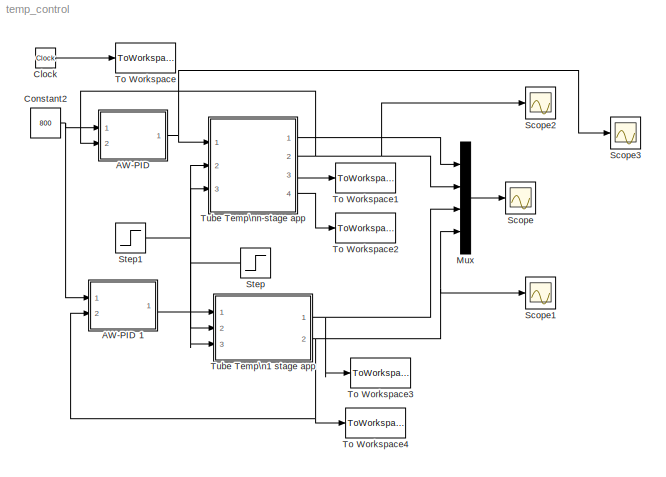
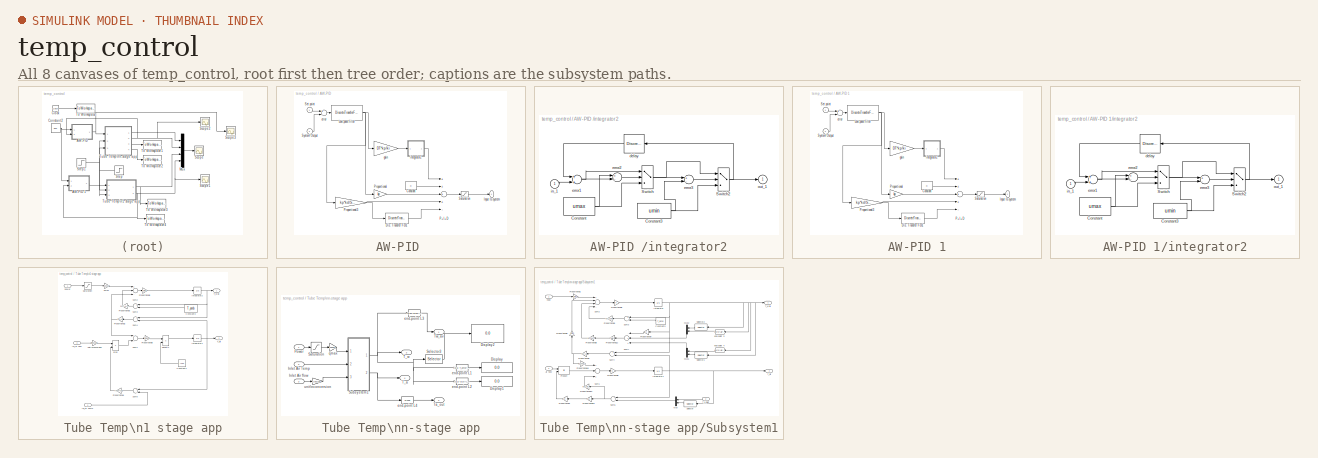
[diagram: thumbnail index - all 8 canvases of the model, root first then tree order]
MODEL temp_control
KIND model
BLOCK [SubSystem] AW-PID 
  Ports = [2, 1]
  RequestExecContextInheritance = off
  SID = 1
  ShowPortLabels = none
  Variant = off
BLOCK [Constant] AW-PID /Constant
  SID = 4
  Value = 0
BLOCK [DiscreteTransferFcn] AW-PID /Dis. Transfer Fcn1
  Denominator = [1 -1+DT/SAM]
  InputPortMap = u0
  Numerator = [DT/SAM]
  Ports = [1, 1]
  SID = 5
  SampleTime = DT
BLOCK [Outport] AW-PID /Input to system
  IconDisplay = Port number
  InitialOutput = 0
  SID = 24
BLOCK [DiscreteTransferFcn] AW-PID /Low-pass filter
  Denominator = [1,  -TF/(TF+DT)]
  InputPortMap = u0
  Numerator = [DT/(TF+DT),  0]
  Ports = [1, 1]
  SID = 6
  SampleTime = DT
BLOCK [Sum] AW-PID /P+I+D
  Inputs = ++++-
  Ports = [5, 1]
  SID = 7
BLOCK [Gain] AW-PID /Proportional
  Gain = kp
  SID = 8
BLOCK [Gain] AW-PID /Proportional3
  Gain = kp*kd/SAM
  SID = 9
BLOCK [Saturate] AW-PID /Saturation
  InputPortMap = u0
  LowerLimit = umin
  Ports = [1, 1]
  SID = 10
  UpperLimit = umax
BLOCK [Inport] AW-PID /Set point
  IconDisplay = Port number
  SID = 2
BLOCK [Inport] AW-PID /System Output
  IconDisplay = Port number
  Port = 2
  SID = 3
BLOCK [Sum] AW-PID /error
  Inputs = +-
  Ports = [2, 1]
  SID = 11
BLOCK [Gain] AW-PID /gain
  Gain = DT*kp/ki
  SID = 12
BLOCK [SubSystem] AW-PID /integrator2
  Ports = [1, 1]
  RequestExecContextInheritance = off
  SID = 13
  ShowPortLabels = none
  Variant = off
BLOCK [Constant] AW-PID /integrator2/Constant
  SID = 15
  Value = umax
BLOCK [Constant] AW-PID /integrator2/Constant3
  SID = 16
  Value = umin
BLOCK [Switch] AW-PID /integrator2/Switch
  SID = 17
BLOCK [Switch] AW-PID /integrator2/Switch2
  SID = 18
BLOCK [DiscreteTransferFcn] AW-PID /integrator2/delay
  Denominator = [1 0]
  InputPortMap = u0
  Ports = [1, 1]
  SID = 19
  SampleTime = DT
BLOCK [Sum] AW-PID /integrator2/error1
  Ports = [2, 1]
  SID = 20
BLOCK [Sum] AW-PID /integrator2/error2
  Inputs = +-
  Ports = [2, 1]
  SID = 21
BLOCK [Sum] AW-PID /integrator2/error3
  Inputs = +-
  Ports = [2, 1]
  SID = 22
BLOCK [Inport] AW-PID /integrator2/in_1
  IconDisplay = Port number
  SID = 14
BLOCK [Outport] AW-PID /integrator2/out_1
  IconDisplay = Port number
  InitialOutput = 0
  SID = 23
BLOCK [SubSystem] AW-PID 1
  Ports = [2, 1]
  RequestExecContextInheritance = off
  SID = 25
  ShowPortLabels = none
  Variant = off
BLOCK [Constant] AW-PID 1/Constant
  SID = 28
  Value = 0
BLOCK [DiscreteTransferFcn] AW-PID 1/Dis. Transfer Fcn1
  Denominator = [1 -1+DT/SAM]
  InputPortMap = u0
  Numerator = [DT/SAM]
  Ports = [1, 1]
  SID = 29
  SampleTime = DT
BLOCK [Outport] AW-PID 1/Input to system
  IconDisplay = Port number
  InitialOutput = 0
  SID = 48
BLOCK [DiscreteTransferFcn] AW-PID 1/Low-pass filter
  Denominator = [1,  -TF/(TF+DT)]
  InputPortMap = u0
  Numerator = [DT/(TF+DT),  0]
  Ports = [1, 1]
  SID = 30
  SampleTime = DT
BLOCK [Sum] AW-PID 1/P+I+D
  Inputs = ++++-
  Ports = [5, 1]
  SID = 31
BLOCK [Gain] AW-PID 1/Proportional
  Gain = kp
  SID = 32
BLOCK [Gain] AW-PID 1/Proportional3
  Gain = kp*kd/SAM
  SID = 33
BLOCK [Saturate] AW-PID 1/Saturation
  InputPortMap = u0
  LowerLimit = umin
  Ports = [1, 1]
  SID = 34
  UpperLimit = umax
BLOCK [Inport] AW-PID 1/Set point
  IconDisplay = Port number
  SID = 26
BLOCK [Inport] AW-PID 1/System Output
  IconDisplay = Port number
  Port = 2
  SID = 27
BLOCK [Sum] AW-PID 1/error
  Inputs = +-
  Ports = [2, 1]
  SID = 35
BLOCK [Gain] AW-PID 1/gain
  Gain = DT*kp/ki
  SID = 36
BLOCK [SubSystem] AW-PID 1/integrator2
  Ports = [1, 1]
  RequestExecContextInheritance = off
  SID = 37
  ShowPortLabels = none
  Variant = off
BLOCK [Constant] AW-PID 1/integrator2/Constant
  SID = 39
  Value = umax
BLOCK [Constant] AW-PID 1/integrator2/Constant3
  SID = 40
  Value = umin
BLOCK [Switch] AW-PID 1/integrator2/Switch
  SID = 41
BLOCK [Switch] AW-PID 1/integrator2/Switch2
  SID = 42
BLOCK [DiscreteTransferFcn] AW-PID 1/integrator2/delay
  Denominator = [1 0]
  InputPortMap = u0
  Ports = [1, 1]
  SID = 43
  SampleTime = DT
BLOCK [Sum] AW-PID 1/integrator2/error1
  Ports = [2, 1]
  SID = 44
BLOCK [Sum] AW-PID 1/integrator2/error2
  Inputs = +-
  Ports = [2, 1]
  SID = 45
BLOCK [Sum] AW-PID 1/integrator2/error3
  Inputs = +-
  Ports = [2, 1]
  SID = 46
BLOCK [Inport] AW-PID 1/integrator2/in_1
  IconDisplay = Port number
  SID = 38
BLOCK [Outport] AW-PID 1/integrator2/out_1
  IconDisplay = Port number
  InitialOutput = 0
  SID = 47
BLOCK [Clock] Clock
  SID = 49
BLOCK [Constant] Constant2
  SID = 50
  Value = 800
BLOCK [Mux] Mux
  DisplayOption = bar
  Ports = [4, 1]
  SID = 51
BLOCK [Scope] Scope
  Ports = [1]
  SID = 52
  ScopeSpecificationString = Simulink.scopes.TimeScopeBlockCfg('CurrentConfiguration', extmgr.ConfigurationSet(extmgr.Configuration('Core','General UI',true),extmgr.Configuration('Core','Source UI',true),extmgr.Configuration('Sources','WiredSimulink',true,'DataLoggingSaveFormat','StructureWithTime','DataLoggingDecimation','1','DataLoggingDecimateData',true),extmgr.Configuration('Visuals','Time Domain',true,'SerializedDisplays...<+1828ch>
BLOCK [Scope] Scope1
  Ports = [1]
  SID = 141
  ScopeSpecificationString = Simulink.scopes.TimeScopeBlockCfg('CurrentConfiguration', extmgr.ConfigurationSet(extmgr.Configuration('Core','General UI',true),extmgr.Configuration('Core','Source UI',true),extmgr.Configuration('Sources','WiredSimulink',true,'DataLoggingSaveFormat','StructureWithTime','DataLoggingDecimation','1','DataLoggingDecimateData',true,'DataLoggingVariableName','ScopeData1'),extmgr.Configuration('Visuals'...<+1867ch>
BLOCK [Scope] Scope2
  Ports = [1]
  SID = 142
  ScopeSpecificationString = Simulink.scopes.TimeScopeBlockCfg('CurrentConfiguration', extmgr.ConfigurationSet(extmgr.Configuration('Core','General UI',true),extmgr.Configuration('Core','Source UI',true),extmgr.Configuration('Sources','WiredSimulink',true,'DataLoggingSaveFormat','StructureWithTime','DataLoggingDecimation','1','DataLoggingDecimateData',true,'DataLoggingVariableName','ScopeData2'),extmgr.Configuration('Visuals'...<+1793ch>
BLOCK [Scope] Scope3
  Ports = [1]
  SID = 143
  ScopeSpecificationString = Simulink.scopes.TimeScopeBlockCfg('CurrentConfiguration', extmgr.ConfigurationSet(extmgr.Configuration('Core','General UI',true),extmgr.Configuration('Core','Source UI',true),extmgr.Configuration('Sources','WiredSimulink',true,'DataLoggingSaveFormat','StructureWithTime','DataLoggingDecimation','1','DataLoggingDecimateData',true,'DataLoggingVariableName','ScopeData3'),extmgr.Configuration('Visuals'...<+1793ch>
BLOCK [Step] Step
  After = 500
  Before = 25
  SID = 53
  SampleTime = 0
  Time = 10000
BLOCK [Step] Step1
  After = 10
  Before = 1
  SID = 54
  SampleTime = 0
  Time = 5000
BLOCK [ToWorkspace] To Workspace
  MaxDataPoints = inf
  Ports = [1]
  SID = 55
  SampleTime = 1
  VariableName = T
BLOCK [ToWorkspace] To Workspace1
  MaxDataPoints = inf
  Ports = [1]
  SID = 56
  SampleTime = 1
  VariableName = YW
BLOCK [ToWorkspace] To Workspace2
  MaxDataPoints = inf
  Ports = [1]
  SID = 57
  SampleTime = 1
  VariableName = YA
BLOCK [ToWorkspace] To Workspace3
  MaxDataPoints = inf
  Ports = [1]
  SID = 58
  SampleTime = 1
  VariableName = YW1
BLOCK [ToWorkspace] To Workspace4
  MaxDataPoints = inf
  Ports = [1]
  SID = 59
  SampleTime = 1
  VariableName = YA1
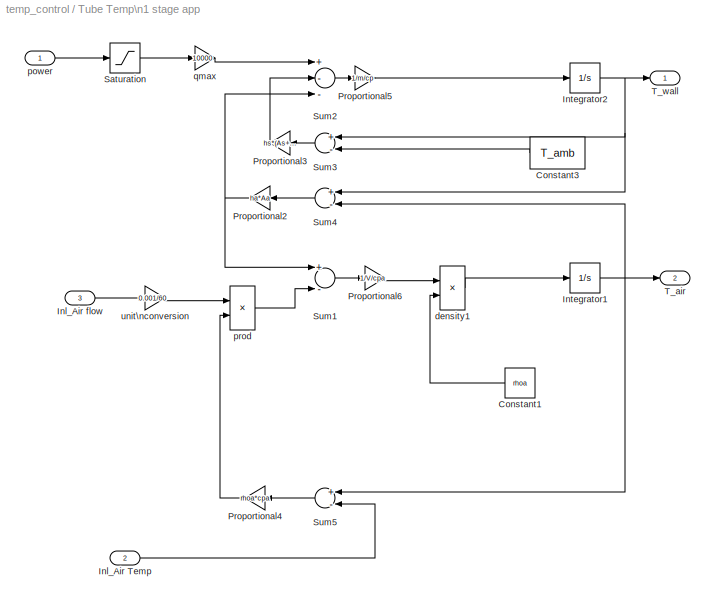
BLOCK [SubSystem] Tube Temp\n1 stage app
  Ports = [3, 2]
  RequestExecContextInheritance = off
  SID = 60
  Variant = off
BLOCK [Constant] Tube Temp\n1 stage app/Constant1
  SID = 64
  Value = rhoa
BLOCK [Constant] Tube Temp\n1 stage app/Constant3
  SID = 65
  Value = T_amb
BLOCK [Inport] Tube Temp\n1 stage app/Inl_Air Temp
  IconDisplay = Port number
  Port = 2
  SID = 62
BLOCK [Inport] Tube Temp\n1 stage app/Inl_Air flow
  IconDisplay = Port number
  Port = 3
  SID = 63
BLOCK [Integrator] Tube Temp\n1 stage app/Integrator1
  InitialCondition = T_a0
  LowerSaturationLimit = 0
  Ports = [1, 1]
  SID = 66
  UpperSaturationLimit = 1
BLOCK [Integrator] Tube Temp\n1 stage app/Integrator2
  InitialCondition = T_0
  LowerSaturationLimit = 0
  Ports = [1, 1]
  SID = 67
  UpperSaturationLimit = 1
BLOCK [Gain] Tube Temp\n1 stage app/Proportional2
  Gain = ha*Aa
  SID = 68
BLOCK [Gain] Tube Temp\n1 stage app/Proportional3
  Gain = hs*(As+A_d)
  SID = 69
BLOCK [Gain] Tube Temp\n1 stage app/Proportional4
  Gain = rhoa*cpa
  SID = 70
BLOCK [Gain] Tube Temp\n1 stage app/Proportional5
  Gain = 1/m/cp
  SID = 71
BLOCK [Gain] Tube Temp\n1 stage app/Proportional6
  Gain = 1/V/cpa
  SID = 72
BLOCK [Saturate] Tube Temp\n1 stage app/Saturation
  InputPortMap = u0
  LowerLimit = 0
  Ports = [1, 1]
  SID = 73
  UpperLimit = 1
BLOCK [Sum] Tube Temp\n1 stage app/Sum1
  Inputs = +-
  Ports = [2, 1]
  SID = 74
BLOCK [Sum] Tube Temp\n1 stage app/Sum2
  Inputs = +--
  Ports = [3, 1]
  SID = 75
BLOCK [Sum] Tube Temp\n1 stage app/Sum3
  Inputs = +-
  Ports = [2, 1]
  SID = 76
BLOCK [Sum] Tube Temp\n1 stage app/Sum4
  Inputs = +-
  Ports = [2, 1]
  SID = 77
BLOCK [Sum] Tube Temp\n1 stage app/Sum5
  Inputs = +-
  Ports = [2, 1]
  SID = 78
BLOCK [Outport] Tube Temp\n1 stage app/T_air
  IconDisplay = Port number
  Port = 2
  SID = 84
BLOCK [Outport] Tube Temp\n1 stage app/T_wall
  IconDisplay = Port number
  SID = 83
BLOCK [Product] Tube Temp\n1 stage app/density1
  Inputs = */
  Ports = [2, 1]
  SID = 79
BLOCK [Inport] Tube Temp\n1 stage app/power
  IconDisplay = Port number
  SID = 61
BLOCK [Product] Tube Temp\n1 stage app/prod
  Inputs = **
  Ports = [2, 1]
  SID = 80
BLOCK [Gain] Tube Temp\n1 stage app/qmax
  Gain = 10000
  SID = 81
BLOCK [Gain] Tube Temp\n1 stage app/unit\nconversion
  Gain = 0.001/60
  SID = 82
BLOCK [SubSystem] Tube Temp\nn-stage app
  Ports = [3, 4]
  RequestExecContextInheritance = off
  SID = 85
  Variant = off
BLOCK [Display] Tube Temp\nn-stage app/Display
  Decimation = 1
  Format = short_e
  Ports = [1]
  SID = 89
BLOCK [Display] Tube Temp\nn-stage app/Display1
  Decimation = 1
  Format = short_e
  Ports = [1]
  SID = 90
BLOCK [Display] Tube Temp\nn-stage app/Display2
  Decimation = 1
  Format = short_e
  Ports = [1]
  SID = 91
BLOCK [Inport] Tube Temp\nn-stage app/Inlet Air Temp
  IconDisplay = Port number
  Port = 2
  SID = 87
BLOCK [Inport] Tube Temp\nn-stage app/Inlet Air flow
  IconDisplay = Port number
  Port = 3
  SID = 88
BLOCK [Inport] Tube Temp\nn-stage app/Power
  IconDisplay = Port number
  SID = 86
BLOCK [Saturate] Tube Temp\nn-stage app/Saturation
  InputPortMap = u0
  LowerLimit = 0
  Ports = [1, 1]
  SID = 92
  UpperLimit = 1
BLOCK [Selector] Tube Temp\nn-stage app/Selector3
  IndexOptions = Index vector (dialog)
  Indices = [1,2]
  InputPortWidth = n
  OutputSizes = 1
  Ports = [1, 1]
  SID = 93
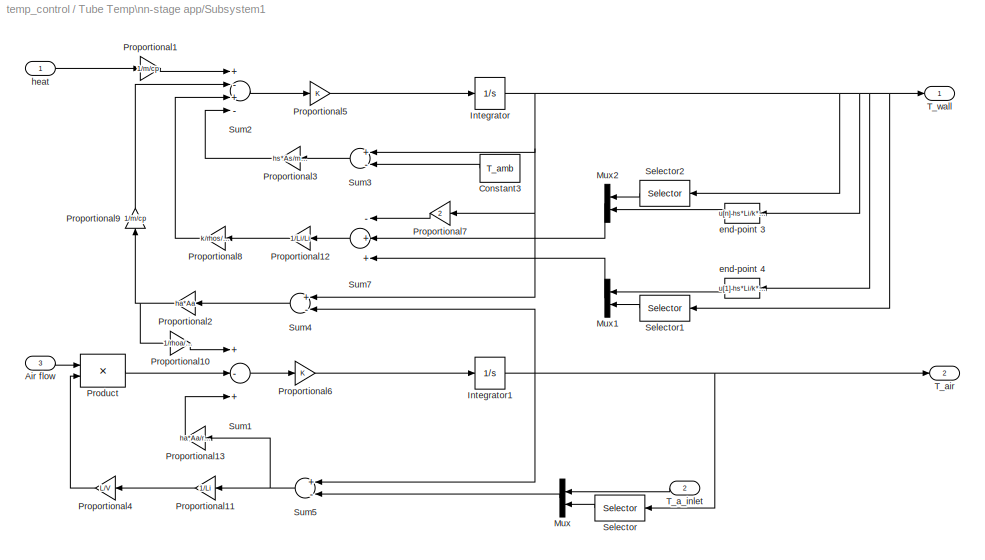
BLOCK [SubSystem] Tube Temp\nn-stage app/Subsystem1
  Ports = [3, 2]
  RequestExecContextInheritance = off
  SID = 94
  Variant = off
BLOCK [Inport] Tube Temp\nn-stage app/Subsystem1/Air flow
  IconDisplay = Port number
  Port = 3
  SID = 97
BLOCK [Constant] Tube Temp\nn-stage app/Subsystem1/Constant3
  SID = 98
  Value = T_amb
BLOCK [Integrator] Tube Temp\nn-stage app/Subsystem1/Integrator
  InitialCondition = T_0
  Ports = [1, 1]
  SID = 99
BLOCK [Integrator] Tube Temp\nn-stage app/Subsystem1/Integrator1
  InitialCondition = T_a0
  Ports = [1, 1]
  SID = 100
BLOCK [Mux] Tube Temp\nn-stage app/Subsystem1/Mux
  DisplayOption = bar
  Inputs = 2
  Ports = [2, 1]
  SID = 101
BLOCK [Mux] Tube Temp\nn-stage app/Subsystem1/Mux1
  DisplayOption = bar
  Inputs = 2
  Ports = [2, 1]
  SID = 102
BLOCK [Mux] Tube Temp\nn-stage app/Subsystem1/Mux2
  DisplayOption = bar
  Inputs = 2
  Ports = [2, 1]
  SID = 103
BLOCK [Product] Tube Temp\nn-stage app/Subsystem1/Product
  Ports = [2, 1]
  SID = 104
BLOCK [Gain] Tube Temp\nn-stage app/Subsystem1/Proportional1
  Gain = 1/m/cp
  SID = 105
BLOCK [Gain] Tube Temp\nn-stage app/Subsystem1/Proportional10
  Gain = 1/rhoa/V/cpa
  SID = 106
BLOCK [Gain] Tube Temp\nn-stage app/Subsystem1/Proportional11
  Gain = 1/Li
  SID = 107
BLOCK [Gain] Tube Temp\nn-stage app/Subsystem1/Proportional12
  Gain = 1/Li/Li
  SID = 108
BLOCK [Gain] Tube Temp\nn-stage app/Subsystem1/Proportional13
  Gain = ha*Aa/rhoa/V/cpa*0
  SID = 109
BLOCK [Gain] Tube Temp\nn-stage app/Subsystem1/Proportional2
  Gain = ha*Aa
  SID = 110
BLOCK [Gain] Tube Temp\nn-stage app/Subsystem1/Proportional3
  Gain = hs*As/m/cp
  SID = 111
BLOCK [Gain] Tube Temp\nn-stage app/Subsystem1/Proportional4
  Gain = L/V
  SID = 112
BLOCK [Gain] Tube Temp\nn-stage app/Subsystem1/Proportional5
  SID = 113
BLOCK [Gain] Tube Temp\nn-stage app/Subsystem1/Proportional6
  SID = 114
BLOCK [Gain] Tube Temp\nn-stage app/Subsystem1/Proportional7
  Gain = 2
  SID = 115
BLOCK [Gain] Tube Temp\nn-stage app/Subsystem1/Proportional8
  Gain = k/rhos/cp
  SID = 116
BLOCK [Gain] Tube Temp\nn-stage app/Subsystem1/Proportional9
  Gain = 1/m/cp
  SID = 117
BLOCK [Selector] Tube Temp\nn-stage app/Subsystem1/Selector
  IndexOptions = Index vector (dialog)
  Indices = [1:n-1]
  InputPortWidth = n
  OutputSizes = 1
  Ports = [1, 1]
  SID = 118
BLOCK [Selector] Tube Temp\nn-stage app/Subsystem1/Selector1
  IndexOptions = Index vector (dialog)
  Indices = [1:n-1]
  InputPortWidth = n
  OutputSizes = 1
  Ports = [1, 1]
  SID = 119
BLOCK [Selector] Tube Temp\nn-stage app/Subsystem1/Selector2
  IndexOptions = Index vector (dialog)
  Indices = [2:n]
  InputPortWidth = n
  OutputSizes = 1
  Ports = [1, 1]
  SID = 120
BLOCK [Sum] Tube Temp\nn-stage app/Subsystem1/Sum1
  Inputs = +-+
  Ports = [3, 1]
  SID = 121
BLOCK [Sum] Tube Temp\nn-stage app/Subsystem1/Sum2
  Inputs = +-+-
  Ports = [4, 1]
  SID = 122
BLOCK [Sum] Tube Temp\nn-stage app/Subsystem1/Sum3
  Inputs = +-
  Ports = [2, 1]
  SID = 123
BLOCK [Sum] Tube Temp\nn-stage app/Subsystem1/Sum4
  Inputs = +-
  Ports = [2, 1]
  SID = 124
BLOCK [Sum] Tube Temp\nn-stage app/Subsystem1/Sum5
  Inputs = +-
  Ports = [2, 1]
  SID = 125
BLOCK [Sum] Tube Temp\nn-stage app/Subsystem1/Sum7
  Inputs = -++
  Ports = [3, 1]
  SID = 126
BLOCK [Inport] Tube Temp\nn-stage app/Subsystem1/T_a_inlet
  IconDisplay = Port number
  Port = 2
  SID = 96
BLOCK [Outport] Tube Temp\nn-stage app/Subsystem1/T_air
  IconDisplay = Port number
  Port = 2
  SID = 130
BLOCK [Outport] Tube Temp\nn-stage app/Subsystem1/T_wall
  IconDisplay = Port number
  SID = 129
BLOCK [Fcn] Tube Temp\nn-stage app/Subsystem1/end-point 3
  Expr = u[n]-hs*Li/k*(u[n]-T_amb)
  SID = 127
BLOCK [Fcn] Tube Temp\nn-stage app/Subsystem1/end-point 4
  Expr = u[1]-hs*Li/k*(u[1]-T_amb)
  SID = 128
BLOCK [Inport] Tube Temp\nn-stage app/Subsystem1/heat
  IconDisplay = Port number
  SID = 95
BLOCK [Outport] Tube Temp\nn-stage app/T_a
  IconDisplay = Port number
  Port = 4
  SID = 140
BLOCK [Outport] Tube Temp\nn-stage app/T_w
  IconDisplay = Port number
  Port = 3
  SID = 139
BLOCK [Outport] Tube Temp\nn-stage app/Ta_out
  IconDisplay = Port number
  Port = 2
  SID = 138
BLOCK [Outport] Tube Temp\nn-stage app/Tw_av
  IconDisplay = Port number
  SID = 137
BLOCK [Fcn] Tube Temp\nn-stage app/end-point L1
  Expr = (u[1]-T_amb)*hs
  SID = 131
BLOCK [Fcn] Tube Temp\nn-stage app/end-point L2
  Expr = (u[1]-u[2])/Li*k
  SID = 132
BLOCK [Fcn] Tube Temp\nn-stage app/end-point L3
  Expr = (u[30]+u[50]+u[70])/3
  SID = 133
BLOCK [Fcn] Tube Temp\nn-stage app/end-point L4
  Expr = u[100]
  SID = 134
BLOCK [Gain] Tube Temp\nn-stage app/qmax
  Gain = 10000
  SID = 135
BLOCK [Gain] Tube Temp\nn-stage app/unit\nconversion
  Gain = 0.001/60
  SID = 136
LINE AW-PID /Constant:1 -> AW-PID /P+I+D:2
LINE AW-PID /Dis. Transfer Fcn1:1 -> AW-PID /P+I+D:5
NET AW-PID /Low-pass filter:1 -> AW-PID /Proportional3:1, AW-PID /Proportional:1, AW-PID /gain:1
LINE AW-PID /P+I+D:1 -> AW-PID /Saturation:1
NET AW-PID /Proportional3:1 -> AW-PID /Dis. Transfer Fcn1:1, AW-PID /P+I+D:4
LINE AW-PID /Proportional:1 -> AW-PID /P+I+D:3
LINE AW-PID /Saturation:1 -> AW-PID /Input to system:1
LINE AW-PID /Set point:1 -> AW-PID /error:1
LINE AW-PID /System Output:1 -> AW-PID /error:2
LINE AW-PID /error:1 -> AW-PID /Low-pass filter:1
LINE AW-PID /gain:1 -> AW-PID /integrator2:1
NET AW-PID /integrator2/Constant3:1 -> AW-PID /integrator2/Switch2:3, AW-PID /integrator2/error3:2
NET AW-PID /integrator2/Constant:1 -> AW-PID /integrator2/Switch:3, AW-PID /integrator2/error2:1
NET AW-PID /integrator2/Switch2:1 -> AW-PID /integrator2/delay:1, AW-PID /integrator2/out_1:1
NET AW-PID /integrator2/Switch:1 -> AW-PID /integrator2/Switch2:1, AW-PID /integrator2/error3:1
LINE AW-PID /integrator2/delay:1 -> AW-PID /integrator2/error1:1
NET AW-PID /integrator2/error1:1 -> AW-PID /integrator2/Switch:1, AW-PID /integrator2/error2:2
LINE AW-PID /integrator2/error2:1 -> AW-PID /integrator2/Switch:2
LINE AW-PID /integrator2/error3:1 -> AW-PID /integrator2/Switch2:2
LINE AW-PID /integrator2/in_1:1 -> AW-PID /integrator2/error1:2
LINE AW-PID /integrator2:1 -> AW-PID /P+I+D:1
LINE AW-PID 1/Constant:1 -> AW-PID 1/P+I+D:2
LINE AW-PID 1/Dis. Transfer Fcn1:1 -> AW-PID 1/P+I+D:5
NET AW-PID 1/Low-pass filter:1 -> AW-PID 1/Proportional3:1, AW-PID 1/Proportional:1, AW-PID 1/gain:1
LINE AW-PID 1/P+I+D:1 -> AW-PID 1/Saturation:1
NET AW-PID 1/Proportional3:1 -> AW-PID 1/Dis. Transfer Fcn1:1, AW-PID 1/P+I+D:4
LINE AW-PID 1/Proportional:1 -> AW-PID 1/P+I+D:3
LINE AW-PID 1/Saturation:1 -> AW-PID 1/Input to system:1
LINE AW-PID 1/Set point:1 -> AW-PID 1/error:1
LINE AW-PID 1/System Output:1 -> AW-PID 1/error:2
LINE AW-PID 1/error:1 -> AW-PID 1/Low-pass filter:1
LINE AW-PID 1/gain:1 -> AW-PID 1/integrator2:1
NET AW-PID 1/integrator2/Constant3:1 -> AW-PID 1/integrator2/Switch2:3, AW-PID 1/integrator2/error3:2
NET AW-PID 1/integrator2/Constant:1 -> AW-PID 1/integrator2/Switch:3, AW-PID 1/integrator2/error2:1
NET AW-PID 1/integrator2/Switch2:1 -> AW-PID 1/integrator2/delay:1, AW-PID 1/integrator2/out_1:1
NET AW-PID 1/integrator2/Switch:1 -> AW-PID 1/integrator2/Switch2:1, AW-PID 1/integrator2/error3:1
LINE AW-PID 1/integrator2/delay:1 -> AW-PID 1/integrator2/error1:1
NET AW-PID 1/integrator2/error1:1 -> AW-PID 1/integrator2/Switch:1, AW-PID 1/integrator2/error2:2
LINE AW-PID 1/integrator2/error2:1 -> AW-PID 1/integrator2/Switch:2
LINE AW-PID 1/integrator2/error3:1 -> AW-PID 1/integrator2/Switch2:2
LINE AW-PID 1/integrator2/in_1:1 -> AW-PID 1/integrator2/error1:2
LINE AW-PID 1/integrator2:1 -> AW-PID 1/P+I+D:1
LINE AW-PID 1:1 -> Tube Temp\n1 stage app:1
NET AW-PID :1 -> Scope3:1, Tube Temp\nn-stage app:1
LINE Clock:1 -> To Workspace:1
NET Constant2:1 -> AW-PID 1:1, AW-PID :1
LINE Mux:1 -> Scope:1
NET Step1:1 -> Tube Temp\n1 stage app:3, Tube Temp\nn-stage app:3
NET Step:1 -> Tube Temp\n1 stage app:2, Tube Temp\nn-stage app:2
LINE Tube Temp\n1 stage app/Constant1:1 -> Tube Temp\n1 stage app/density1:2
LINE Tube Temp\n1 stage app/Constant3:1 -> Tube Temp\n1 stage app/Sum3:2
LINE Tube Temp\n1 stage app/Inl_Air Temp:1 -> Tube Temp\n1 stage app/Sum5:2
LINE Tube Temp\n1 stage app/Inl_Air flow:1 -> Tube Temp\n1 stage app/unit\nconversion:1
NET Tube Temp\n1 stage app/Integrator1:1 -> Tube Temp\n1 stage app/Sum4:2, Tube Temp\n1 stage app/Sum5:1, Tube Temp\n1 stage app/T_air:1
NET Tube Temp\n1 stage app/Integrator2:1 -> Tube Temp\n1 stage app/Sum3:1, Tube Temp\n1 stage app/Sum4:1, Tube Temp\n1 stage app/T_wall:1
NET Tube Temp\n1 stage app/Proportional2:1 -> Tube Temp\n1 stage app/Sum1:1, Tube Temp\n1 stage app/Sum2:3
LINE Tube Temp\n1 stage app/Proportional3:1 -> Tube Temp\n1 stage app/Sum2:2
LINE Tube Temp\n1 stage app/Proportional4:1 -> Tube Temp\n1 stage app/prod:2
LINE Tube Temp\n1 stage app/Proportional5:1 -> Tube Temp\n1 stage app/Integrator2:1
LINE Tube Temp\n1 stage app/Proportional6:1 -> Tube Temp\n1 stage app/density1:1
LINE Tube Temp\n1 stage app/Saturation:1 -> Tube Temp\n1 stage app/qmax:1
LINE Tube Temp\n1 stage app/Sum1:1 -> Tube Temp\n1 stage app/Proportional6:1
LINE Tube Temp\n1 stage app/Sum2:1 -> Tube Temp\n1 stage app/Proportional5:1
LINE Tube Temp\n1 stage app/Sum3:1 -> Tube Temp\n1 stage app/Proportional3:1
LINE Tube Temp\n1 stage app/Sum4:1 -> Tube Temp\n1 stage app/Proportional2:1
LINE Tube Temp\n1 stage app/Sum5:1 -> Tube Temp\n1 stage app/Proportional4:1
LINE Tube Temp\n1 stage app/density1:1 -> Tube Temp\n1 stage app/Integrator1:1
LINE Tube Temp\n1 stage app/power:1 -> Tube Temp\n1 stage app/Saturation:1
LINE Tube Temp\n1 stage app/prod:1 -> Tube Temp\n1 stage app/Sum1:2
LINE Tube Temp\n1 stage app/qmax:1 -> Tube Temp\n1 stage app/Sum2:1
LINE Tube Temp\n1 stage app/unit\nconversion:1 -> Tube Temp\n1 stage app/prod:1
NET Tube Temp\n1 stage app:1 -> Mux:3, To Workspace3:1
NET Tube Temp\n1 stage app:2 -> AW-PID 1:2, Mux:4, Scope1:1, To Workspace4:1
LINE Tube Temp\nn-stage app/Inlet Air Temp:1 -> Tube Temp\nn-stage app/Subsystem1:2
LINE Tube Temp\nn-stage app/Inlet Air flow:1 -> Tube Temp\nn-stage app/unit\nconversion:1
LINE Tube Temp\nn-stage app/Power:1 -> Tube Temp\nn-stage app/Saturation:1
LINE Tube Temp\nn-stage app/Saturation:1 -> Tube Temp\nn-stage app/qmax:1
LINE Tube Temp\nn-stage app/Selector3:1 -> Tube Temp\nn-stage app/Display2:1
LINE Tube Temp\nn-stage app/Subsystem1/Air flow:1 -> Tube Temp\nn-stage app/Subsystem1/Product:1
LINE Tube Temp\nn-stage app/Subsystem1/Constant3:1 -> Tube Temp\nn-stage app/Subsystem1/Sum3:2
NET Tube Temp\nn-stage app/Subsystem1/Integrator1:1 -> Tube Temp\nn-stage app/Subsystem1/Selector:1, Tube Temp\nn-stage app/Subsystem1/Sum4:2, Tube Temp\nn-stage app/Subsystem1/Sum5:1, Tube Temp\nn-stage app/Subsystem1/T_air:1
NET Tube Temp\nn-stage app/Subsystem1/Integrator:1 -> Tube Temp\nn-stage app/Subsystem1/Proportional7:1, Tube Temp\nn-stage app/Subsystem1/Selector1:1, Tube Temp\nn-stage app/Subsystem1/Selector2:1, Tube Temp\nn-stage app/Subsystem1/Sum3:1, Tube Temp\nn-stage app/Subsystem1/Sum4:1, Tube Temp\nn-stage app/Subsystem1/T_wall:1, Tube Temp\nn-stage app/Subsystem1/end-point 3:1, Tube Temp\nn-stage app/Subsystem1/end-point 4:1
LINE Tube Temp\nn-stage app/Subsystem1/Mux1:1 -> Tube Temp\nn-stage app/Subsystem1/Sum7:3
LINE Tube Temp\nn-stage app/Subsystem1/Mux2:1 -> Tube Temp\nn-stage app/Subsystem1/Sum7:2
LINE Tube Temp\nn-stage app/Subsystem1/Mux:1 -> Tube Temp\nn-stage app/Subsystem1/Sum5:2
LINE Tube Temp\nn-stage app/Subsystem1/Product:1 -> Tube Temp\nn-stage app/Subsystem1/Sum1:2
LINE Tube Temp\nn-stage app/Subsystem1/Proportional10:1 -> Tube Temp\nn-stage app/Subsystem1/Sum1:1
LINE Tube Temp\nn-stage app/Subsystem1/Proportional11:1 -> Tube Temp\nn-stage app/Subsystem1/Proportional4:1
LINE Tube Temp\nn-stage app/Subsystem1/Proportional12:1 -> Tube Temp\nn-stage app/Subsystem1/Proportional8:1
LINE Tube Temp\nn-stage app/Subsystem1/Proportional13:1 -> Tube Temp\nn-stage app/Subsystem1/Sum1:3
LINE Tube Temp\nn-stage app/Subsystem1/Proportional1:1 -> Tube Temp\nn-stage app/Subsystem1/Sum2:1
NET Tube Temp\nn-stage app/Subsystem1/Proportional2:1 -> Tube Temp\nn-stage app/Subsystem1/Proportional10:1, Tube Temp\nn-stage app/Subsystem1/Proportional9:1
LINE Tube Temp\nn-stage app/Subsystem1/Proportional3:1 -> Tube Temp\nn-stage app/Subsystem1/Sum2:4
LINE Tube Temp\nn-stage app/Subsystem1/Proportional4:1 -> Tube Temp\nn-stage app/Subsystem1/Product:2
LINE Tube Temp\nn-stage app/Subsystem1/Proportional5:1 -> Tube Temp\nn-stage app/Subsystem1/Integrator:1
LINE Tube Temp\nn-stage app/Subsystem1/Proportional6:1 -> Tube Temp\nn-stage app/Subsystem1/Integrator1:1
LINE Tube Temp\nn-stage app/Subsystem1/Proportional7:1 -> Tube Temp\nn-stage app/Subsystem1/Sum7:1
LINE Tube Temp\nn-stage app/Subsystem1/Proportional8:1 -> Tube Temp\nn-stage app/Subsystem1/Sum2:3
LINE Tube Temp\nn-stage app/Subsystem1/Proportional9:1 -> Tube Temp\nn-stage app/Subsystem1/Sum2:2
LINE Tube Temp\nn-stage app/Subsystem1/Selector1:1 -> Tube Temp\nn-stage app/Subsystem1/Mux1:2
LINE Tube Temp\nn-stage app/Subsystem1/Selector2:1 -> Tube Temp\nn-stage app/Subsystem1/Mux2:1
LINE Tube Temp\nn-stage app/Subsystem1/Selector:1 -> Tube Temp\nn-stage app/Subsystem1/Mux:2
LINE Tube Temp\nn-stage app/Subsystem1/Sum1:1 -> Tube Temp\nn-stage app/Subsystem1/Proportional6:1
LINE Tube Temp\nn-stage app/Subsystem1/Sum2:1 -> Tube Temp\nn-stage app/Subsystem1/Proportional5:1
LINE Tube Temp\nn-stage app/Subsystem1/Sum3:1 -> Tube Temp\nn-stage app/Subsystem1/Proportional3:1
LINE Tube Temp\nn-stage app/Subsystem1/Sum4:1 -> Tube Temp\nn-stage app/Subsystem1/Proportional2:1
NET Tube Temp\nn-stage app/Subsystem1/Sum5:1 -> Tube Temp\nn-stage app/Subsystem1/Proportional11:1, Tube Temp\nn-stage app/Subsystem1/Proportional13:1
LINE Tube Temp\nn-stage app/Subsystem1/Sum7:1 -> Tube Temp\nn-stage app/Subsystem1/Proportional12:1
LINE Tube Temp\nn-stage app/Subsystem1/T_a_inlet:1 -> Tube Temp\nn-stage app/Subsystem1/Mux:1
LINE Tube Temp\nn-stage app/Subsystem1/end-point 3:1 -> Tube Temp\nn-stage app/Subsystem1/Mux2:2
LINE Tube Temp\nn-stage app/Subsystem1/end-point 4:1 -> Tube Temp\nn-stage app/Subsystem1/Mux1:1
LINE Tube Temp\nn-stage app/Subsystem1/heat:1 -> Tube Temp\nn-stage app/Subsystem1/Proportional1:1
NET Tube Temp\nn-stage app/Subsystem1:1 -> Tube Temp\nn-stage app/Selector3:1, Tube Temp\nn-stage app/T_w:1, Tube Temp\nn-stage app/end-point L1:1, Tube Temp\nn-stage app/end-point L2:1, Tube Temp\nn-stage app/end-point L3:1
NET Tube Temp\nn-stage app/Subsystem1:2 -> Tube Temp\nn-stage app/T_a:1, Tube Temp\nn-stage app/end-point L4:1
LINE Tube Temp\nn-stage app/end-point L1:1 -> Tube Temp\nn-stage app/Display:1
LINE Tube Temp\nn-stage app/end-point L2:1 -> Tube Temp\nn-stage app/Display1:1
LINE Tube Temp\nn-stage app/end-point L3:1 -> Tube Temp\nn-stage app/Tw_av:1
LINE Tube Temp\nn-stage app/end-point L4:1 -> Tube Temp\nn-stage app/Ta_out:1
LINE Tube Temp\nn-stage app/qmax:1 -> Tube Temp\nn-stage app/Subsystem1:1
LINE Tube Temp\nn-stage app/unit\nconversion:1 -> Tube Temp\nn-stage app/Subsystem1:3
LINE Tube Temp\nn-stage app:1 -> Mux:1
NET Tube Temp\nn-stage app:2 -> AW-PID :2, Mux:2, Scope2:1
LINE Tube Temp\nn-stage app:3 -> To Workspace1:1
LINE Tube Temp\nn-stage app:4 -> To Workspace2:1
note: NET lines group one-source signal fan-out (src -> all destinations, sorted); 1:1 wires keep LINE
